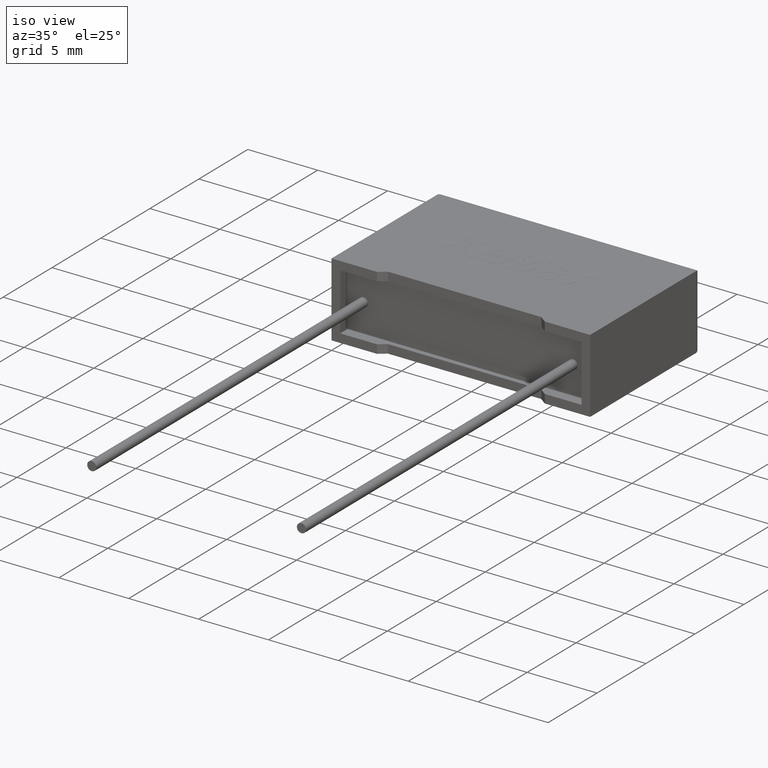
[diagram: clean part render]
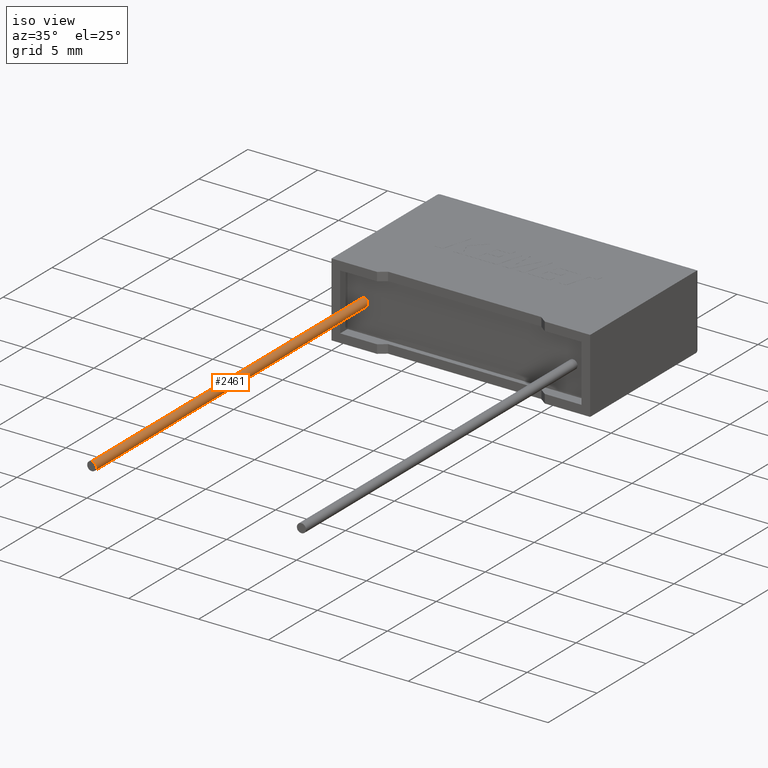
[diagram: same view with one face highlighted and labeled with its STEP entity id]
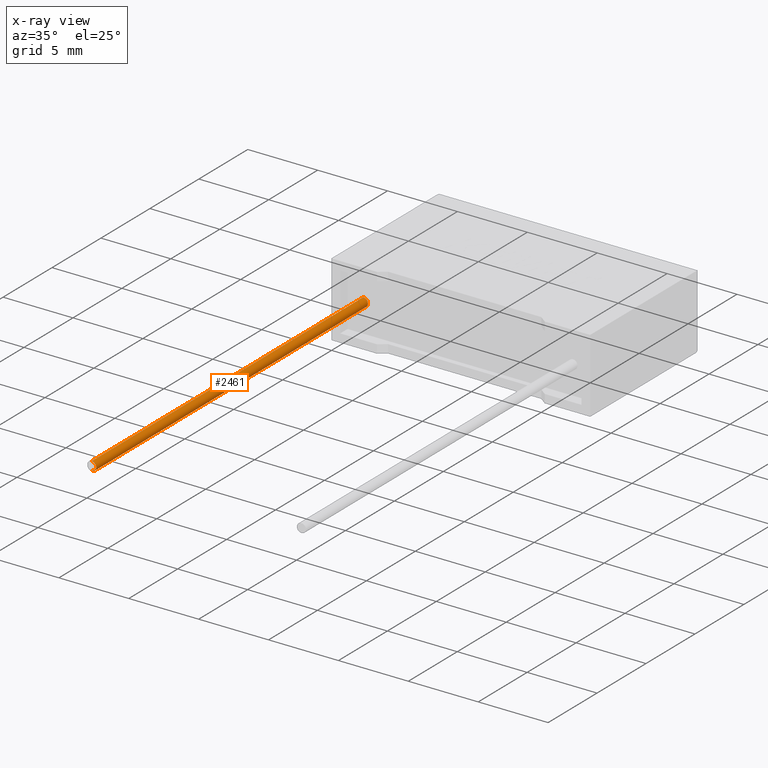
[diagram: x-ray of the same camera — body ghosted, the highlighted face saturated]
A machine part, iso view. The second image highlights one B-rep face of the part: STEP entity #2461.
The next image is the same camera in x-ray: the body ghosted, the highlighted face saturated — about 0% of this face is hidden behind the body in this view.
In plain terms, the highlighted cylindrical surface (edge-blend (fillet) strip) has radius 0.325 mm, axis along (-0, 1, -0).
Its self-contained STEP definition (entity closure, byte-faithful):
#21 = DIRECTION ( 'NONE',  ( 0.000000000000000000, 0.000000000000000000, -1.000000000000000000 ) ) ;
#37 = VERTEX_POINT ( 'NONE', #2372 ) ;
#265 = CARTESIAN_POINT ( 'NONE',  ( 1.749999999999999778, 0.7500000000000000000, 2.325000000000000178 ) ) ;
#383 = DIRECTION ( 'NONE',  ( 0.000000000000000000, 0.000000000000000000, -1.000000000000000000 ) ) ;
#399 = EDGE_CURVE ( 'NONE', #2366, #3010, #2290, .T. ) ;
#442 = CARTESIAN_POINT ( 'NONE',  ( 1.749999999999999778, -27.00000000000000000, 2.325000000000000178 ) ) ;
#583 = ORIENTED_EDGE ( 'NONE', *, *, #1603, .F. ) ;
#614 = LINE ( 'NONE', #442, #2537 ) ;
#712 = EDGE_CURVE ( 'NONE', #1513, #3010, #934, .T. ) ;
#930 = CARTESIAN_POINT ( 'NONE',  ( 1.749999999999999778, -27.00000000000000000, 2.974999999999999645 ) ) ;
#934 = LINE ( 'NONE', #2121, #2870 ) ;
#945 = DIRECTION ( 'NONE',  ( -0.000000000000000000, 1.000000000000000000, -0.000000000000000000 ) ) ;
#1087 = CARTESIAN_POINT ( 'NONE',  ( 1.749999999999999778, -27.00000000000000000, 2.649999999999999911 ) ) ;
#1125 = CIRCLE ( 'NONE', #1666, 0.3249999999999997891 ) ;
#1147 = EDGE_CURVE ( 'NONE', #37, #2366, #614, .T. ) ;
#1350 = DIRECTION ( 'NONE',  ( 0.000000000000000000, 0.000000000000000000, 1.000000000000000000 ) ) ;
#1398 = DIRECTION ( 'NONE',  ( -0.000000000000000000, 1.000000000000000000, -0.000000000000000000 ) ) ;
#1428 = DIRECTION ( 'NONE',  ( 0.000000000000000000, -1.000000000000000000, 0.000000000000000000 ) ) ;
#1513 = VERTEX_POINT ( 'NONE', #930 ) ;
#1546 = CYLINDRICAL_SURFACE ( 'NONE', #1626, 0.3249999999999997891 ) ;
#1556 = AXIS2_PLACEMENT_3D ( 'NONE', #2115, #1428, #21 ) ;
#1603 = EDGE_CURVE ( 'NONE', #37, #1513, #1125, .T. ) ;
#1626 = AXIS2_PLACEMENT_3D ( 'NONE', #1087, #2971, #1350 ) ;
#1666 = AXIS2_PLACEMENT_3D ( 'NONE', #2788, #2267, #383 ) ;
#1786 = ORIENTED_EDGE ( 'NONE', *, *, #399, .T. ) ;
#2083 = CARTESIAN_POINT ( 'NONE',  ( 1.749999999999999778, 0.7500000000000000000, 2.974999999999999645 ) ) ;
#2115 = CARTESIAN_POINT ( 'NONE',  ( 1.749999999999999778, 0.7500000000000000000, 2.649999999999999911 ) ) ;
#2121 = CARTESIAN_POINT ( 'NONE',  ( 1.749999999999999778, -27.00000000000000000, 2.974999999999999645 ) ) ;
#2267 = DIRECTION ( 'NONE',  ( 0.000000000000000000, -1.000000000000000000, 0.000000000000000000 ) ) ;
#2290 = CIRCLE ( 'NONE', #1556, 0.3249999999999997891 ) ;
#2366 = VERTEX_POINT ( 'NONE', #265 ) ;
#2372 = CARTESIAN_POINT ( 'NONE',  ( 1.749999999999999778, -27.00000000000000000, 2.325000000000000178 ) ) ;
#2461 = ADVANCED_FACE ( 'NONE', ( #2698 ), #1546, .T. ) ;
#2537 = VECTOR ( 'NONE', #1398, 1000.000000000000000 ) ;
#2680 = ORIENTED_EDGE ( 'NONE', *, *, #1147, .T. ) ;
#2698 = FACE_OUTER_BOUND ( 'NONE', #2814, .T. ) ;
#2768 = ORIENTED_EDGE ( 'NONE', *, *, #712, .F. ) ;
#2788 = CARTESIAN_POINT ( 'NONE',  ( 1.749999999999999778, -27.00000000000000000, 2.649999999999999911 ) ) ;
#2814 = EDGE_LOOP ( 'NONE', ( #583, #2680, #1786, #2768 ) ) ;
#2870 = VECTOR ( 'NONE', #945, 1000.000000000000000 ) ;
#2971 = DIRECTION ( 'NONE',  ( -0.000000000000000000, 1.000000000000000000, -0.000000000000000000 ) ) ;
#3010 = VERTEX_POINT ( 'NONE', #2083 ) ;